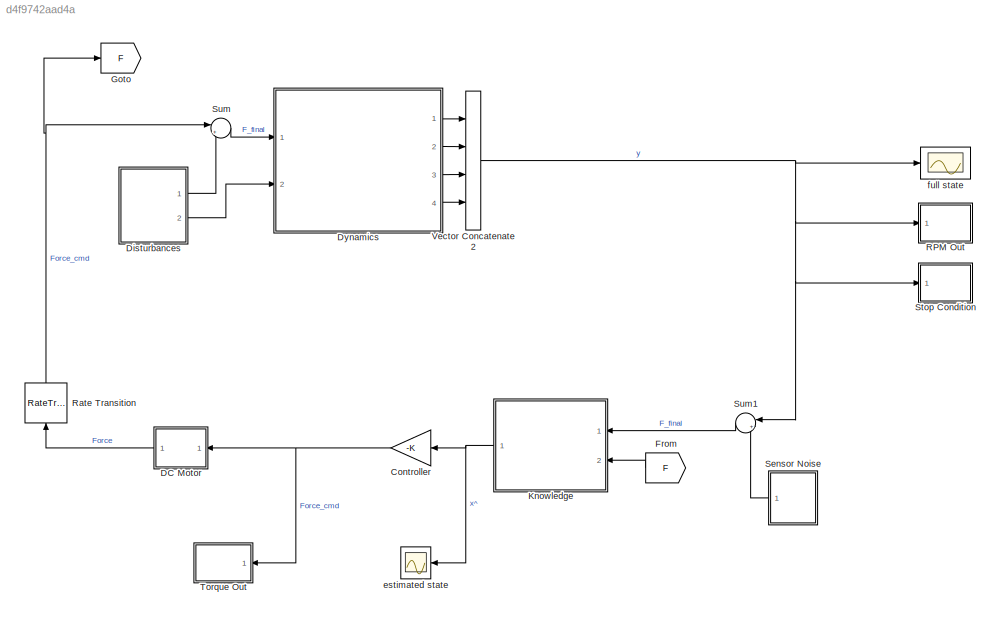
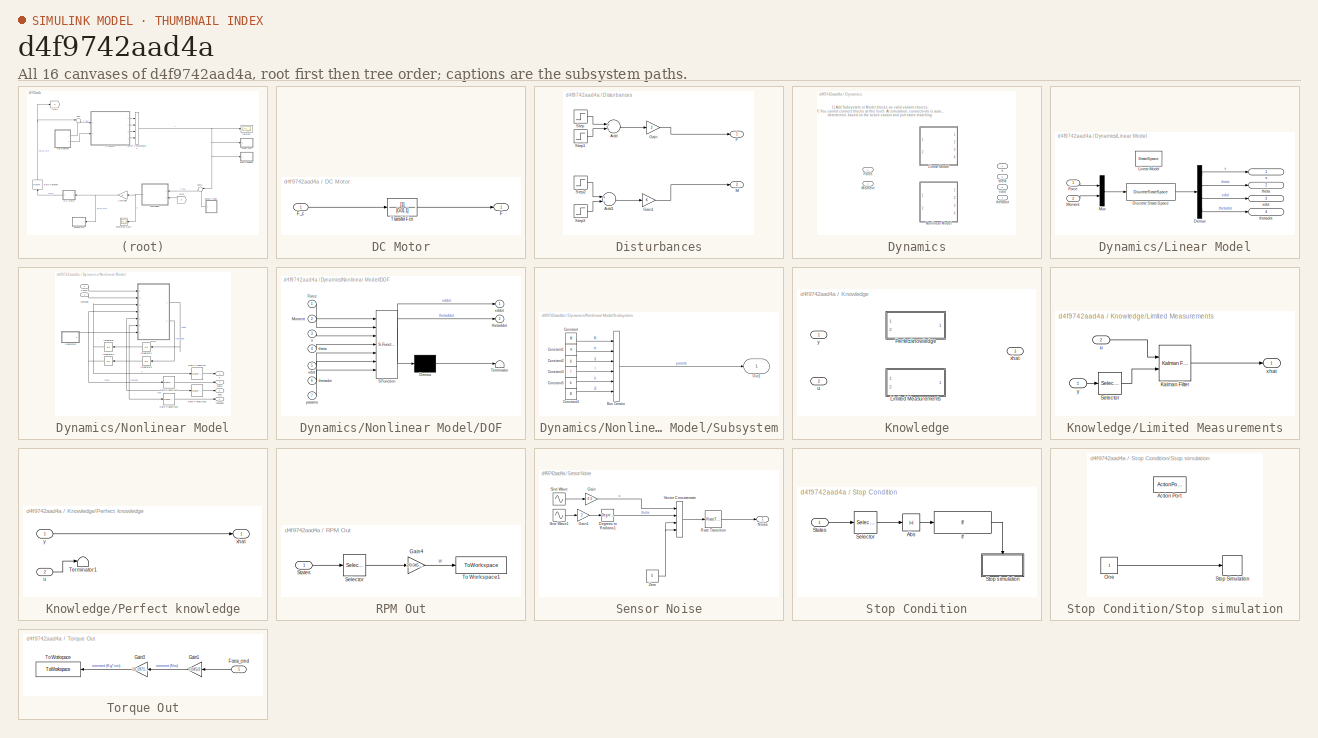
[diagram: thumbnail index - all 16 canvases of the model, root first then tree order]
MODEL slx_d4f9742aad4a
KIND model
CONFIG AbsTol = auto
CONFIG EnableMultiTasking = off
CONFIG FixedStep = tau
CONFIG MaxStep = auto
CONFIG MinStep = auto
CONFIG RelTol = 1e-6
CONFIG SampleTimeConstraint = Unconstrained
CONFIG Solver = FixedStepAuto
CONFIG SolverName = FixedStepAuto
CONFIG StartTime = 0.0
CONFIG StopTime = 5
BLOCK [Gain] Controller
  Gain = -K
  Multiplication = Matrix(K*u)
  OutDataTypeStr = Inherit: Inherit via internal rule
  ParamDataTypeStr = Inherit: Inherit via internal rule
  SaturateOnIntegerOverflow = off
BLOCK [SubSystem] DC Motor
  Ports = [1, 1]
  RequestExecContextInheritance = off
BLOCK [Outport] DC Motor/F
  IconDisplay = Port number
BLOCK [Inport] DC Motor/F_c
  IconDisplay = Port number
BLOCK [TransferFcn] DC Motor/Transfer Fcn
  Denominator = [0.01 1]
BLOCK [SubSystem] Disturbances
  Ports = [0, 2]
  RequestExecContextInheritance = off
BLOCK [Sum] Disturbances/Add
  InputSameDT = off
  OutDataTypeStr = Inherit: Inherit via internal rule
  Ports = [2, 1]
  SaturateOnIntegerOverflow = off
BLOCK [Sum] Disturbances/Add1
  InputSameDT = off
  OutDataTypeStr = Inherit: Inherit via internal rule
  Ports = [2, 1]
  SaturateOnIntegerOverflow = off
BLOCK [Outport] Disturbances/F
  IconDisplay = Port number
BLOCK [Gain] Disturbances/Gain
  Gain = 2
  OutDataTypeStr = Inherit: Inherit via internal rule
  ParamDataTypeStr = Inherit: Inherit via internal rule
  SaturateOnIntegerOverflow = off
BLOCK [Gain] Disturbances/Gain1
  OutDataTypeStr = Inherit: Inherit via internal rule
  ParamDataTypeStr = Inherit: Inherit via internal rule
  SaturateOnIntegerOverflow = off
BLOCK [Outport] Disturbances/M
  IconDisplay = Port number
  Port = 2
BLOCK [Step] Disturbances/Step
  SampleTime = 0
BLOCK [Step] Disturbances/Step1
  After = -1
  SampleTime = 0
  Time = 1.2
BLOCK [Step] Disturbances/Step2
  SampleTime = 0
BLOCK [Step] Disturbances/Step3
  After = -1
  SampleTime = 0
  Time = 1+0.05
BLOCK [SubSystem] Dynamics
  Ports = [2, 4]
  RequestExecContextInheritance = off
  Variant = on
BLOCK [Inport] Dynamics/Force
  IconDisplay = Signal name
BLOCK [SubSystem] Dynamics/Linear Model
  Ports = [2, 4]
  RequestExecContextInheritance = off
  VariantControl = linearModel == 1
BLOCK [Demux] Dynamics/Linear Model/Demux
  DisplayOption = bar
  Ports = [1, 4]
BLOCK [DiscreteStateSpace] Dynamics/Linear Model/Discrete State-Space
  A = fullSys.A
  B = fullSys.B
  C = fullSys.C
  D = fullSys.D
  InitialCondition = X0
  SampleTime = tau
BLOCK [Inport] Dynamics/Linear Model/Force
  IconDisplay = Signal name
BLOCK [StateSpace] Dynamics/Linear Model/Linear Model
  A = fullSys.A
  B = fullSys.B
  C = fullSys.C
  D = fullSys.D
  InitialCondition = X0
  Ports = [1, 1]
BLOCK [Inport] Dynamics/Linear Model/Moment
  IconDisplay = Signal name
  Port = 2
BLOCK [Mux] Dynamics/Linear Model/Mux
  DisplayOption = bar
  Inputs = 2
  Ports = [2, 1]
BLOCK [Outport] Dynamics/Linear Model/theta
  IconDisplay = Signal name
  Port = 2
BLOCK [Outport] Dynamics/Linear Model/thetadot
  IconDisplay = Signal name
  Port = 4
BLOCK [Outport] Dynamics/Linear Model/x
  IconDisplay = Signal name
BLOCK [Outport] Dynamics/Linear Model/xdot
  IconDisplay = Signal name
  Port = 3
BLOCK [Inport] Dynamics/Moment
  IconDisplay = Signal name
  Port = 2
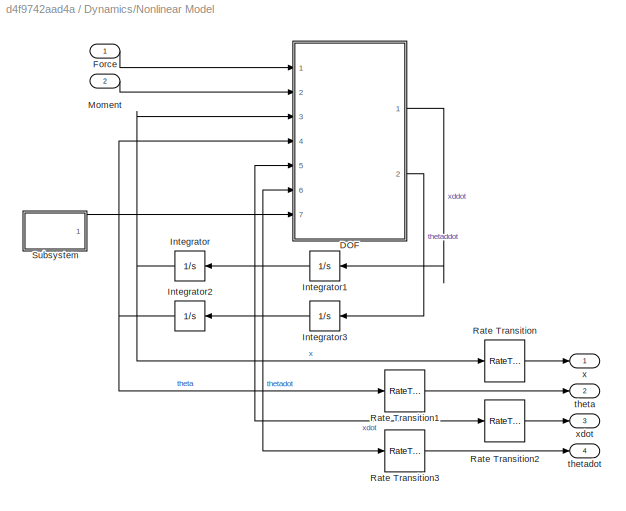
BLOCK [SubSystem] Dynamics/Nonlinear Model
  Ports = [2, 4]
  RequestExecContextInheritance = off
  VariantControl = linearModel == 0
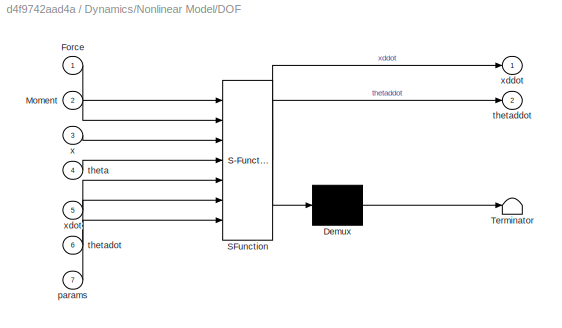
BLOCK [SubSystem] Dynamics/Nonlinear Model/DOF
  ErrorFcn = Stateflow.Translate.translate
  PermitHierarchicalResolution = ExplicitOnly
  Ports = [7, 2]
  RequestExecContextInheritance = off
  SFBlockType = MATLAB Function
  TreatAsAtomicUnit = on
BLOCK [Demux] Dynamics/Nonlinear Model/DOF/ Demux 
  Outputs = 1
  Ports = [1, 1]
BLOCK [S-Function] Dynamics/Nonlinear Model/DOF/ SFunction 
  EnableBusSupport = on
  FunctionName = sf_sfun
  PortCounts = [7 3]
  Ports = [7, 3]
  SFcnIsStateOwnerBlock = off
  SFunctionDeploymentMode = off
  Tag = Stateflow S-Function 1
BLOCK [Terminator] Dynamics/Nonlinear Model/DOF/ Terminator 
BLOCK [Inport] Dynamics/Nonlinear Model/DOF/Force
  IconDisplay = Port number
BLOCK [Inport] Dynamics/Nonlinear Model/DOF/Moment
  IconDisplay = Port number
  Port = 2
BLOCK [Inport] Dynamics/Nonlinear Model/DOF/params
  IconDisplay = Port number
  Port = 7
BLOCK [Inport] Dynamics/Nonlinear Model/DOF/theta
  IconDisplay = Port number
  Port = 4
BLOCK [Outport] Dynamics/Nonlinear Model/DOF/thetaddot
  IconDisplay = Port number
  Port = 2
BLOCK [Inport] Dynamics/Nonlinear Model/DOF/thetadot
  IconDisplay = Port number
  Port = 6
BLOCK [Inport] Dynamics/Nonlinear Model/DOF/x
  IconDisplay = Port number
  Port = 3
BLOCK [Outport] Dynamics/Nonlinear Model/DOF/xddot
  IconDisplay = Port number
BLOCK [Inport] Dynamics/Nonlinear Model/DOF/xdot
  IconDisplay = Port number
  Port = 5
BLOCK [Inport] Dynamics/Nonlinear Model/Force
  IconDisplay = Port number
BLOCK [Integrator] Dynamics/Nonlinear Model/Integrator
  InitialCondition = X0(1)
  Ports = [1, 1]
BLOCK [Integrator] Dynamics/Nonlinear Model/Integrator1
  InitialCondition = X0(3)
  Ports = [1, 1]
BLOCK [Integrator] Dynamics/Nonlinear Model/Integrator2
  InitialCondition = X0(2)
  Ports = [1, 1]
BLOCK [Integrator] Dynamics/Nonlinear Model/Integrator3
  InitialCondition = X0(4)
  Ports = [1, 1]
BLOCK [Inport] Dynamics/Nonlinear Model/Moment
  IconDisplay = Port number
  Port = 2
BLOCK [RateTransition] Dynamics/Nonlinear Model/Rate Transition
  OutPortSampleTime = tau
BLOCK [RateTransition] Dynamics/Nonlinear Model/Rate Transition1
  OutPortSampleTime = tau
BLOCK [RateTransition] Dynamics/Nonlinear Model/Rate Transition2
  OutPortSampleTime = tau
BLOCK [RateTransition] Dynamics/Nonlinear Model/Rate Transition3
  OutPortSampleTime = tau
BLOCK [SubSystem] Dynamics/Nonlinear Model/Subsystem
  Ports = [0, 1]
  RequestExecContextInheritance = off
BLOCK [BusCreator] Dynamics/Nonlinear Model/Subsystem/Bus Creator
  DisplayOption = bar
  InheritFromInputs = on
  Inputs = 6
  OutDataTypeStr = Bus: params
  Ports = [6, 1]
BLOCK [Constant] Dynamics/Nonlinear Model/Subsystem/Constant
  Value = M
BLOCK [Constant] Dynamics/Nonlinear Model/Subsystem/Constant1
  Value = m
BLOCK [Constant] Dynamics/Nonlinear Model/Subsystem/Constant2
  Value = g
BLOCK [Constant] Dynamics/Nonlinear Model/Subsystem/Constant3
  Value = l
BLOCK [Constant] Dynamics/Nonlinear Model/Subsystem/Constant4
  Value = B
BLOCK [Constant] Dynamics/Nonlinear Model/Subsystem/Constant5
  Value = b
BLOCK [Outport] Dynamics/Nonlinear Model/Subsystem/Out1
  IconDisplay = Signal name
  OutDataTypeStr = Bus: params
BLOCK [Outport] Dynamics/Nonlinear Model/theta
  IconDisplay = Signal name
  Port = 2
BLOCK [Outport] Dynamics/Nonlinear Model/thetadot
  IconDisplay = Signal name
  Port = 4
BLOCK [Outport] Dynamics/Nonlinear Model/x
  IconDisplay = Signal name
BLOCK [Outport] Dynamics/Nonlinear Model/xdot
  IconDisplay = Signal name
  Port = 3
BLOCK [Outport] Dynamics/theta
  IconDisplay = Signal name
  Port = 2
BLOCK [Outport] Dynamics/thetadot
  IconDisplay = Signal name
  Port = 4
BLOCK [Outport] Dynamics/x
  IconDisplay = Signal name
BLOCK [Outport] Dynamics/xdot
  IconDisplay = Signal name
  Port = 3
BLOCK [From] From
  GotoTag = F
BLOCK [Goto] Goto
  GotoTag = F
  IconDisplay = Signal name
BLOCK [SubSystem] Knowledge
  Ports = [2, 1]
  RequestExecContextInheritance = off
  Variant = on
BLOCK [SubSystem] Knowledge/Limited Measurements
  Ports = [2, 1]
  RequestExecContextInheritance = off
  VariantControl = fullKnowledge == 0
BLOCK [Reference] Knowledge/Limited Measurements/Kalman Filter  REF=ctrlSharedLib/Kalman Filter
  Ports = [2, 1]
  SourceBlock = ctrlSharedLib/Kalman Filter
  SourceProductBaseCode = CT
  SourceProductName = Control System Toolbox
  SourceType = ctrlKalmanFilter
BLOCK [Selector] Knowledge/Limited Measurements/Selector
  IndexOptions = Index vector (dialog)
  Indices = [1 2]
  InputPortWidth = 4
  OutputSizes = 1
  Ports = [1, 1]
BLOCK [Inport] Knowledge/Limited Measurements/u
  IconDisplay = Port number
  Port = 2
BLOCK [Outport] Knowledge/Limited Measurements/xhat
  IconDisplay = Port number
BLOCK [Inport] Knowledge/Limited Measurements/y
  IconDisplay = Port number
BLOCK [SubSystem] Knowledge/Perfect knowledge
  Ports = [2, 1]
  RequestExecContextInheritance = off
  VariantControl = fullKnowledge == 1
BLOCK [Terminator] Knowledge/Perfect knowledge/Terminator1
BLOCK [Inport] Knowledge/Perfect knowledge/u
  IconDisplay = Port number
  Port = 2
BLOCK [Outport] Knowledge/Perfect knowledge/xhat
  IconDisplay = Port number
BLOCK [Inport] Knowledge/Perfect knowledge/y
  IconDisplay = Port number
BLOCK [Inport] Knowledge/u
  IconDisplay = Port number
  Port = 2
BLOCK [Outport] Knowledge/xhat
  IconDisplay = Port number
BLOCK [Inport] Knowledge/y
  IconDisplay = Port number
BLOCK [SubSystem] RPM Out
  Ports = [1]
  RequestExecContextInheritance = off
BLOCK [Gain] RPM Out/Gain4
  Gain = 2/0.045*9.55
  Multiplication = Matrix(K*u)
  OutDataTypeStr = Inherit: Inherit via internal rule
  ParamDataTypeStr = Inherit: Inherit via internal rule
  SaturateOnIntegerOverflow = off
BLOCK [Selector] RPM Out/Selector
  IndexOptions = Index vector (dialog)
  Indices = 3
  InputPortWidth = 4
  OutputSizes = 1
  Ports = [1, 1]
BLOCK [Inport] RPM Out/States
  IconDisplay = Port number
BLOCK [ToWorkspace] RPM Out/To Workspace1
  FixptAsFi = on
  MaxDataPoints = inf
  Ports = [1]
  SampleTime = -1
  VariableName = rpm
BLOCK [RateTransition] Rate Transition
  OutPortSampleTime = tau
BLOCK [SubSystem] Sensor Noise
  Ports = [0, 1]
  RequestExecContextInheritance = off
BLOCK [Reference] Sensor Noise/Degrees to Radians1  REF=simulink_extras/Transformations/Degrees to
Radians
  Ports = [1, 1]
  SourceBlock = simulink_extras/Transformations/Degrees to\nRadians
  SourceProductBaseCode = SL
  SourceProductName = Simulink
  SourceType = DegreesToRadians
BLOCK [Gain] Sensor Noise/Gain
  Gain = 0.5
  OutDataTypeStr = Inherit: Inherit via internal rule
  ParamDataTypeStr = Inherit: Inherit via internal rule
  SaturateOnIntegerOverflow = off
BLOCK [Gain] Sensor Noise/Gain1
  Gain = 2
  OutDataTypeStr = Inherit: Inherit via internal rule
  ParamDataTypeStr = Inherit: Inherit via internal rule
  SaturateOnIntegerOverflow = off
BLOCK [Outport] Sensor Noise/Noise
  IconDisplay = Port number
BLOCK [RateTransition] Sensor Noise/Rate Transition
  OutPortSampleTime = tau
BLOCK [Sin] Sensor Noise/Sine Wave
  Frequency = 100
  Ports = [0, 1]
  SampleTime = 0
BLOCK [Sin] Sensor Noise/Sine Wave1
  Frequency = 100
  Ports = [0, 1]
  SampleTime = 0
BLOCK [Concatenate] Sensor Noise/Vector Concatenate
  NumInputs = 4
  Ports = [4, 1]
BLOCK [Constant] Sensor Noise/Zero
  OutDataTypeStr = Inherit: Inherit via back propagation
  Value = 0
BLOCK [SubSystem] Stop Condition
  Ports = [1]
  RequestExecContextInheritance = off
BLOCK [Abs] Stop Condition/Abs
  SaturateOnIntegerOverflow = off
BLOCK [If] Stop Condition/If
  IfExpression = u1 >= 1.57
  Ports = [1, 1]
  ShowElse = off
BLOCK [Selector] Stop Condition/Selector
  IndexOptions = Index vector (dialog)
  Indices = 2
  InputPortWidth = 4
  OutputSizes = 1
  Ports = [1, 1]
BLOCK [Inport] Stop Condition/States
  IconDisplay = Port number
BLOCK [SubSystem] Stop Condition/Stop simulation
  Ports = [0, 0, 0, 0, 0, 0, 0, 1]
  RequestExecContextInheritance = off
  TreatAsAtomicUnit = on
BLOCK [ActionPort] Stop Condition/Stop simulation/Action Port
  ActionPortLabel = if(u1 >= 1.57)
BLOCK [Constant] Stop Condition/Stop simulation/One
  OutDataTypeStr = Inherit: Inherit via back propagation
BLOCK [Stop] Stop Condition/Stop simulation/Stop Simulation
BLOCK [Sum] Sum
  IconShape = round
  InputSameDT = off
  Inputs = |++
  OutDataTypeStr = Inherit: Inherit via internal rule
  Ports = [2, 1]
  SaturateOnIntegerOverflow = off
BLOCK [Sum] Sum1
  IconShape = round
  InputSameDT = off
  Inputs = |++
  OutDataTypeStr = Inherit: Inherit via internal rule
  Ports = [2, 1]
  SaturateOnIntegerOverflow = off
BLOCK [SubSystem] Torque Out
  Ports = [1]
  RequestExecContextInheritance = off
BLOCK [Inport] Torque Out/Force_cmd
  IconDisplay = Port number
BLOCK [Gain] Torque Out/Gain1
  Gain = 0.045/2
  Multiplication = Matrix(K*u)
  OutDataTypeStr = Inherit: Inherit via internal rule
  ParamDataTypeStr = Inherit: Inherit via internal rule
  SaturateOnIntegerOverflow = off
BLOCK [Gain] Torque Out/Gain3
  Gain = 10.197162129779
  Multiplication = Matrix(K*u)
  OutDataTypeStr = Inherit: Inherit via internal rule
  ParamDataTypeStr = Inherit: Inherit via internal rule
  SaturateOnIntegerOverflow = off
BLOCK [ToWorkspace] Torque Out/To Workspace
  FixptAsFi = on
  MaxDataPoints = inf
  Ports = [1]
  SampleTime = -1
  VariableName = torque
BLOCK [Concatenate] Vector Concatenate2
  NumInputs = 4
  Ports = [4, 1]
BLOCK [Scope] estimated state
  Floating = off
  NumInputPorts = 1
  Ports = [1]
  ScopeSpecificationString = Simulink.scopes.TimeScopeBlockCfg('CurrentConfiguration', extmgr.ConfigurationSet(extmgr.Configuration('Core','General UI',true),extmgr.Configuration('Core','Source UI',true),extmgr.Configuration('Sources','WiredSimulink',true,'DataLoggingVariableName','ScopeData1'),extmgr.Configuration('Visuals','Time Domain',true,'SerializedDisplays',{struct('MinYLimReal','-2.30029','MaxYLimReal','1.25641','YLab...<+1643ch>
BLOCK [Scope] full state
  Floating = off
  NumInputPorts = 1
  Ports = [1]
  ScopeSpecificationString = Simulink.scopes.TimeScopeBlockCfg('CurrentConfiguration', extmgr.ConfigurationSet(extmgr.Configuration('Core','General UI',true),extmgr.Configuration('Core','Source UI',true),extmgr.Configuration('Sources','WiredSimulink',true),extmgr.Configuration('Visuals','Time Domain',true,'SerializedDisplays',{struct('MinYLimReal','-2.27319','MaxYLimReal','1.72435','YLabelReal','','MinYLimMag','0.00000','MaxY...<+1412ch>
ANNOTATION Dynamics: 1) Add Subsystem or Model blocks as valid variant choices. 2) You cannot connect blocks at this level. At simulation, connectivity is automatically determined, based on the active variant and port name matching.
NET Controller:1 -> DC Motor:1, Torque Out:1
LINE DC Motor/F_c:1 -> DC Motor/Transfer Fcn:1
LINE DC Motor/Transfer Fcn:1 -> DC Motor/F:1
LINE DC Motor:1 -> Rate Transition:1
LINE Disturbances/Add1:1 -> Disturbances/Gain1:1
LINE Disturbances/Add:1 -> Disturbances/Gain:1
LINE Disturbances/Gain1:1 -> Disturbances/M:1
LINE Disturbances/Gain:1 -> Disturbances/F:1
LINE Disturbances/Step1:1 -> Disturbances/Add:2
LINE Disturbances/Step2:1 -> Disturbances/Add1:1
LINE Disturbances/Step3:1 -> Disturbances/Add1:2
LINE Disturbances/Step:1 -> Disturbances/Add:1
LINE Disturbances:1 -> Sum:2
LINE Disturbances:2 -> Dynamics:2
LINE Dynamics/Linear Model/Demux:1 -> Dynamics/Linear Model/x:1
LINE Dynamics/Linear Model/Demux:2 -> Dynamics/Linear Model/theta:1
LINE Dynamics/Linear Model/Demux:3 -> Dynamics/Linear Model/xdot:1
LINE Dynamics/Linear Model/Demux:4 -> Dynamics/Linear Model/thetadot:1
LINE Dynamics/Linear Model/Discrete State-Space:1 -> Dynamics/Linear Model/Demux:1
LINE Dynamics/Linear Model/Force:1 -> Dynamics/Linear Model/Mux:1
LINE Dynamics/Linear Model/Moment:1 -> Dynamics/Linear Model/Mux:2
LINE Dynamics/Linear Model/Mux:1 -> Dynamics/Linear Model/Discrete State-Space:1
LINE Dynamics/Nonlinear Model/DOF:1 -> Dynamics/Nonlinear Model/Integrator1:1
LINE Dynamics/Nonlinear Model/DOF:2 -> Dynamics/Nonlinear Model/Integrator3:1
LINE Dynamics/Nonlinear Model/Force:1 -> Dynamics/Nonlinear Model/DOF:1
NET Dynamics/Nonlinear Model/Integrator1:1 -> Dynamics/Nonlinear Model/DOF:5, Dynamics/Nonlinear Model/Integrator:1, Dynamics/Nonlinear Model/Rate Transition2:1
NET Dynamics/Nonlinear Model/Integrator2:1 -> Dynamics/Nonlinear Model/DOF:4, Dynamics/Nonlinear Model/Rate Transition1:1
NET Dynamics/Nonlinear Model/Integrator3:1 -> Dynamics/Nonlinear Model/DOF:6, Dynamics/Nonlinear Model/Integrator2:1, Dynamics/Nonlinear Model/Rate Transition3:1
NET Dynamics/Nonlinear Model/Integrator:1 -> Dynamics/Nonlinear Model/DOF:3, Dynamics/Nonlinear Model/Rate Transition:1
LINE Dynamics/Nonlinear Model/Moment:1 -> Dynamics/Nonlinear Model/DOF:2
LINE Dynamics/Nonlinear Model/Rate Transition1:1 -> Dynamics/Nonlinear Model/theta:1
LINE Dynamics/Nonlinear Model/Rate Transition2:1 -> Dynamics/Nonlinear Model/xdot:1
LINE Dynamics/Nonlinear Model/Rate Transition3:1 -> Dynamics/Nonlinear Model/thetadot:1
LINE Dynamics/Nonlinear Model/Rate Transition:1 -> Dynamics/Nonlinear Model/x:1
LINE Dynamics/Nonlinear Model/Subsystem/Bus Creator:1 -> Dynamics/Nonlinear Model/Subsystem/Out1:1
LINE Dynamics/Nonlinear Model/Subsystem/Constant1:1 -> Dynamics/Nonlinear Model/Subsystem/Bus Creator:2
LINE Dynamics/Nonlinear Model/Subsystem/Constant2:1 -> Dynamics/Nonlinear Model/Subsystem/Bus Creator:3
LINE Dynamics/Nonlinear Model/Subsystem/Constant3:1 -> Dynamics/Nonlinear Model/Subsystem/Bus Creator:4
LINE Dynamics/Nonlinear Model/Subsystem/Constant4:1 -> Dynamics/Nonlinear Model/Subsystem/Bus Creator:6
LINE Dynamics/Nonlinear Model/Subsystem/Constant5:1 -> Dynamics/Nonlinear Model/Subsystem/Bus Creator:5
LINE Dynamics/Nonlinear Model/Subsystem/Constant:1 -> Dynamics/Nonlinear Model/Subsystem/Bus Creator:1
LINE Dynamics/Nonlinear Model/Subsystem:1 -> Dynamics/Nonlinear Model/DOF:7
LINE Dynamics:1 -> Vector Concatenate2:1
LINE Dynamics:2 -> Vector Concatenate2:2
LINE Dynamics:3 -> Vector Concatenate2:3
LINE Dynamics:4 -> Vector Concatenate2:4
LINE From:1 -> Knowledge:2
LINE Knowledge/Limited Measurements/Kalman Filter:1 -> Knowledge/Limited Measurements/xhat:1
LINE Knowledge/Limited Measurements/Selector:1 -> Knowledge/Limited Measurements/Kalman Filter:2
LINE Knowledge/Limited Measurements/u:1 -> Knowledge/Limited Measurements/Kalman Filter:1
LINE Knowledge/Limited Measurements/y:1 -> Knowledge/Limited Measurements/Selector:1
LINE Knowledge/Perfect knowledge/u:1 -> Knowledge/Perfect knowledge/Terminator1:1
LINE Knowledge/Perfect knowledge/y:1 -> Knowledge/Perfect knowledge/xhat:1
NET Knowledge:1 -> Controller:1, estimated state:1
LINE RPM Out/Gain4:1 -> RPM Out/To Workspace1:1
LINE RPM Out/Selector:1 -> RPM Out/Gain4:1
LINE RPM Out/States:1 -> RPM Out/Selector:1
NET Rate Transition:1 -> Goto:1, Sum:1
LINE Sensor Noise/Degrees to Radians1:1 -> Sensor Noise/Vector Concatenate:2
LINE Sensor Noise/Gain1:1 -> Sensor Noise/Degrees to Radians1:1
LINE Sensor Noise/Gain:1 -> Sensor Noise/Vector Concatenate:1
LINE Sensor Noise/Rate Transition:1 -> Sensor Noise/Noise:1
LINE Sensor Noise/Sine Wave1:1 -> Sensor Noise/Gain1:1
LINE Sensor Noise/Sine Wave:1 -> Sensor Noise/Gain:1
LINE Sensor Noise/Vector Concatenate:1 -> Sensor Noise/Rate Transition:1
NET Sensor Noise/Zero:1 -> Sensor Noise/Vector Concatenate:3, Sensor Noise/Vector Concatenate:4
LINE Sensor Noise:1 -> Sum1:2
LINE Stop Condition/Abs:1 -> Stop Condition/If:1
LINE Stop Condition/If:1 -> Stop Condition/Stop simulation:ifaction
LINE Stop Condition/Selector:1 -> Stop Condition/Abs:1
LINE Stop Condition/States:1 -> Stop Condition/Selector:1
LINE Stop Condition/Stop simulation/One:1 -> Stop Condition/Stop simulation/Stop Simulation:1
LINE Sum1:1 -> Knowledge:1
LINE Sum:1 -> Dynamics:1
LINE Torque Out/Force_cmd:1 -> Torque Out/Gain1:1
LINE Torque Out/Gain1:1 -> Torque Out/Gain3:1
LINE Torque Out/Gain3:1 -> Torque Out/To Workspace:1
NET Vector Concatenate2:1 -> RPM Out:1, Stop Condition:1, Sum1:1, full state:1
note: NET lines group one-source signal fan-out (src -> all destinations, sorted); 1:1 wires keep LINE
CHART Dynamics/Nonlinear Model/DOF states=1 transitions=1
  STATE_LABEL 'eML_blk_kernel()'
  STATE_LABEL 'SCRIPT:\nfunction [xddot,thetaddot]= fcn(Force,Moment, x,theta,xdot,thetadot, params)\n\n\nM = params.M;\nm = params.m;\nl = params.l;\ng = params.g;\nb = params.b;\nB = params.B;\n\nxddot = (- l*m*sin(theta)*thetadot^2 - b*m*cos(theta)*thetadot + Force - B*xdot + Moment*m*cos(theta) + g*m*cos(theta)*sin(theta))/(M + m - m*cos(theta)^2);\n\nthetaddot = (Moment*m + Force*cos(theta) + M*Moment + g*m*sin(theta) -...<+136ch>'
